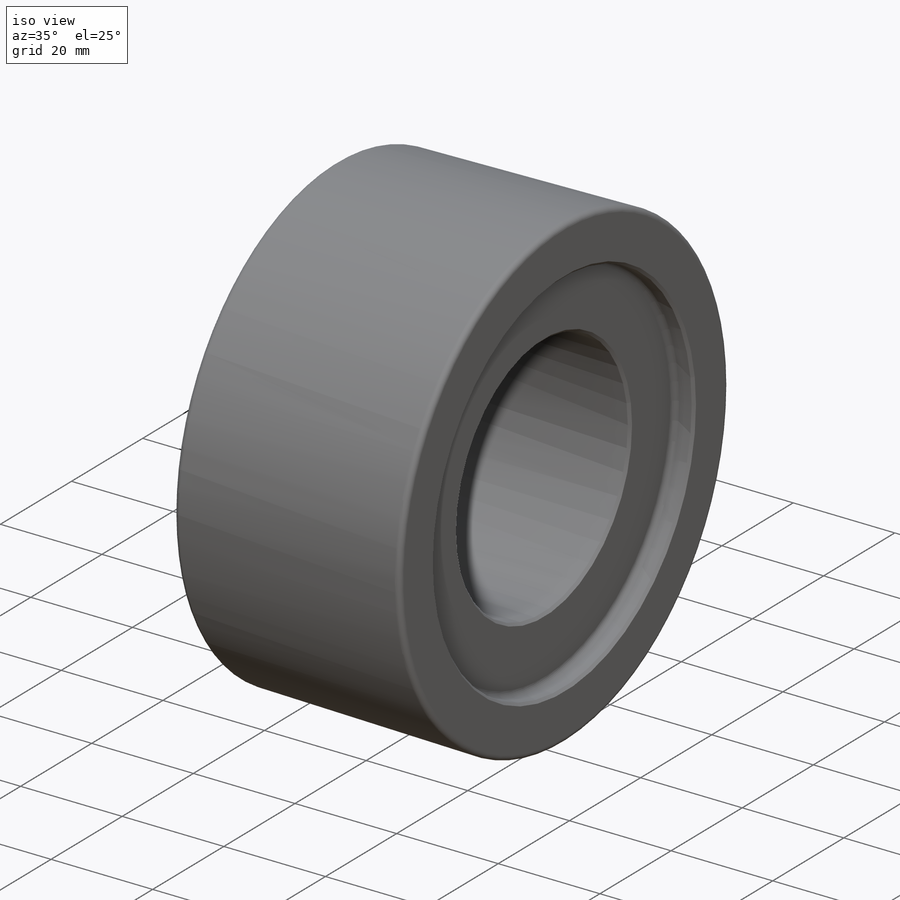
[diagram: iso view]
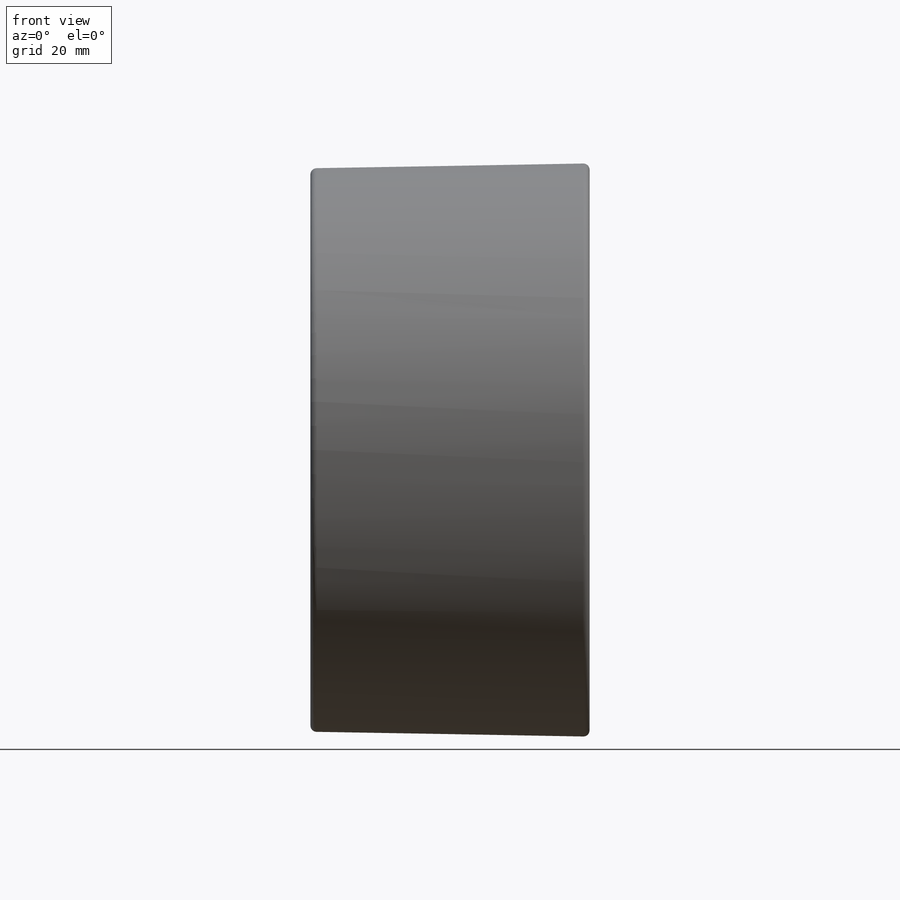
[diagram: front view]
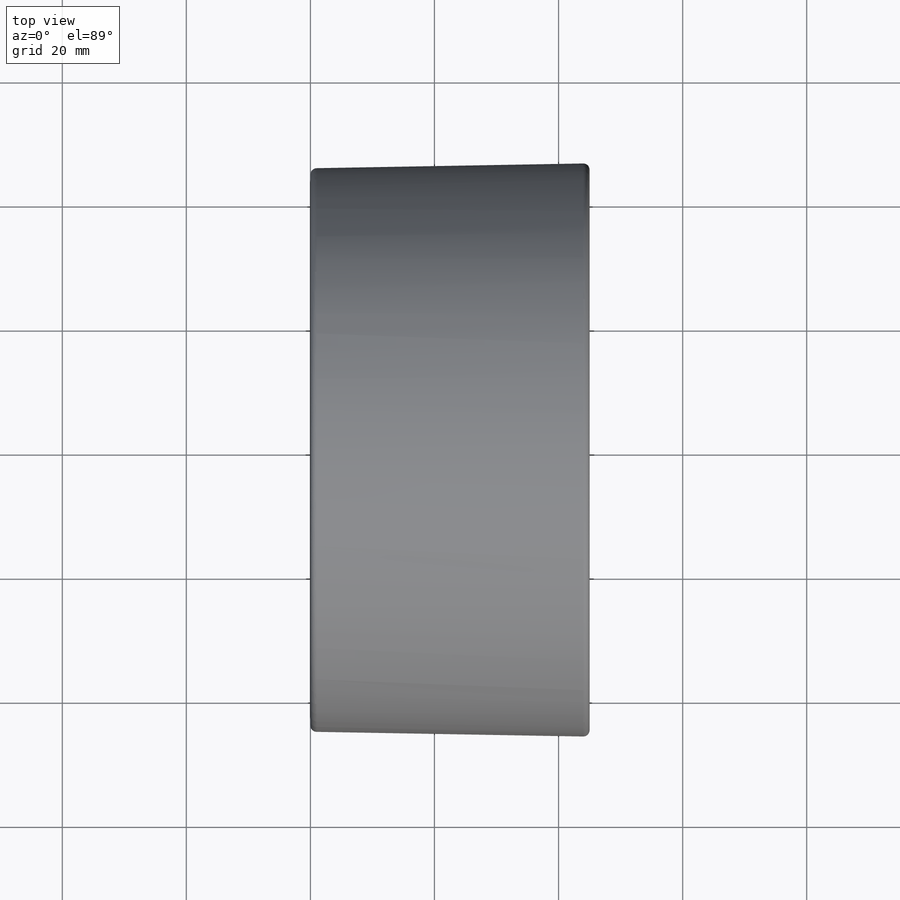
[diagram: top view]
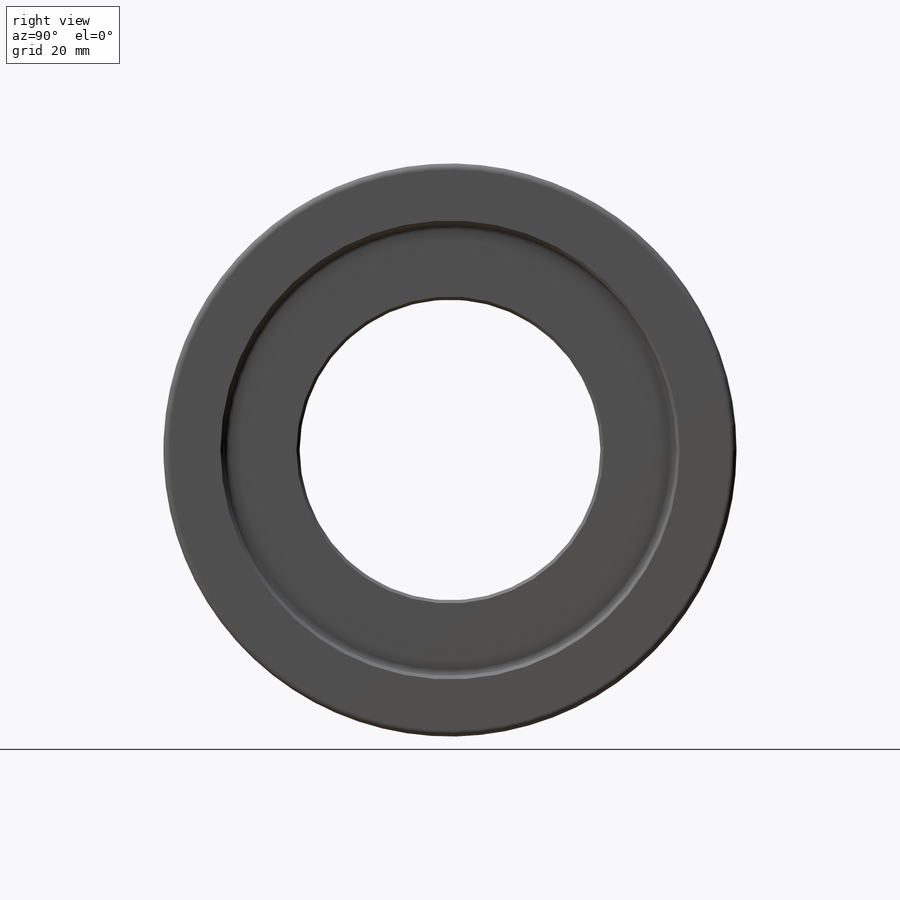
[diagram: right view]
SOLIDWORKS PART (.sldprt)
format: sldprt  version: not decoded by parser v0  size: 248,320 bytes
history: native  units: mm
features: plane x3, chamfer x2, material x1, sketch x1, revolve x1, fillet x1 (+9 scaffold rows collapsed)
feature tree (18):
  scaffold x9  (default folders/planes/origin — collapsed)
  material  "Material <nicht festgelegt>"
  plane  "Ebene vorne"
  plane  "Ebene oben"
  plane  "Ebene rechts"
  sketch  "Skizze1"  dims[c1.D1=73.0mm c1.D2=48.5mm c1.D3=45.0mm c1.D4=4.0mm c1.D5=80.3mm c1.D6=~16.544103mm c2.D6=1.0deg c2.D7=~30.809672mm c3.D7=60.0deg c3.D8=92.42mm c3.D9=~90.849044mm]
  revolve  "Rotation1"  Angle=360deg
  fillet  "Verrundung1"  Radius=1mm
  chamfer  "Fase1"  Distance=0.5mm Angle=45deg
  chamfer  "Verrundung2"  Distance=1mm
decode coverage: 5 of 5 modeling features carry decoded parameters
note: ~ marks probable driven/reference dimensions
note: suppression state not decoded; provenance and decode notes live in map.json
